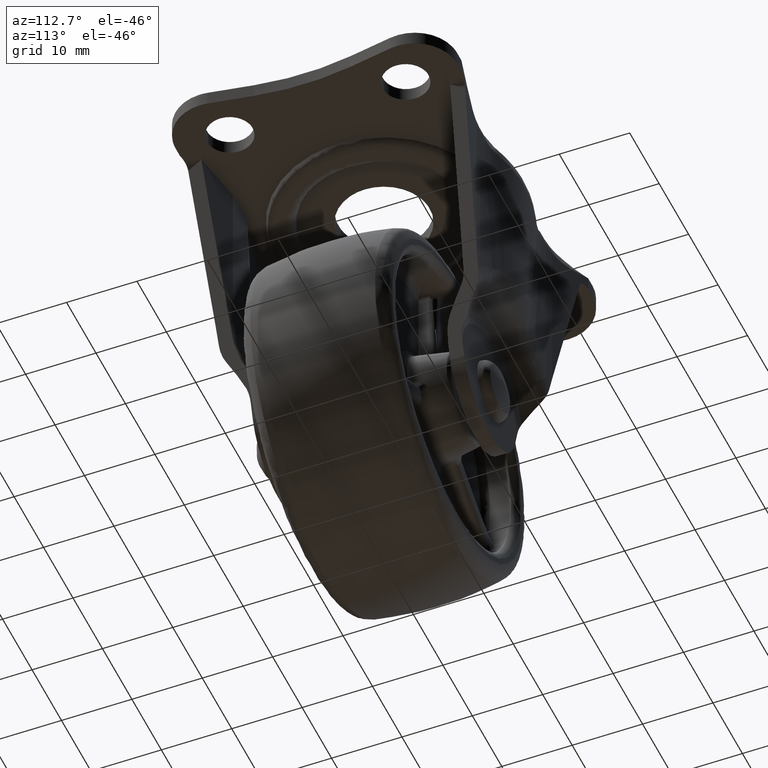
[diagram: clean part render]
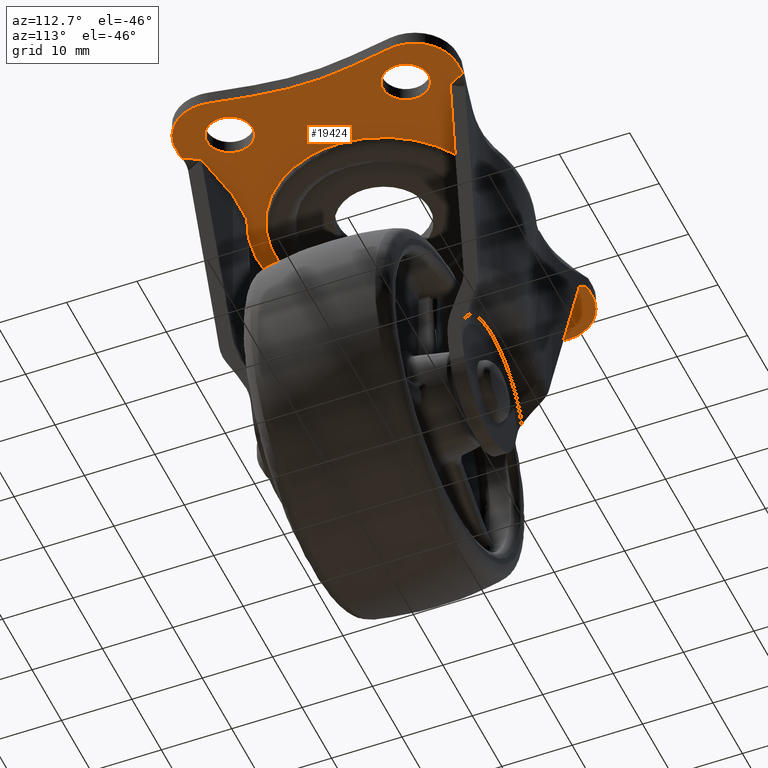
[diagram: same view with one face highlighted and labeled with its STEP entity id]
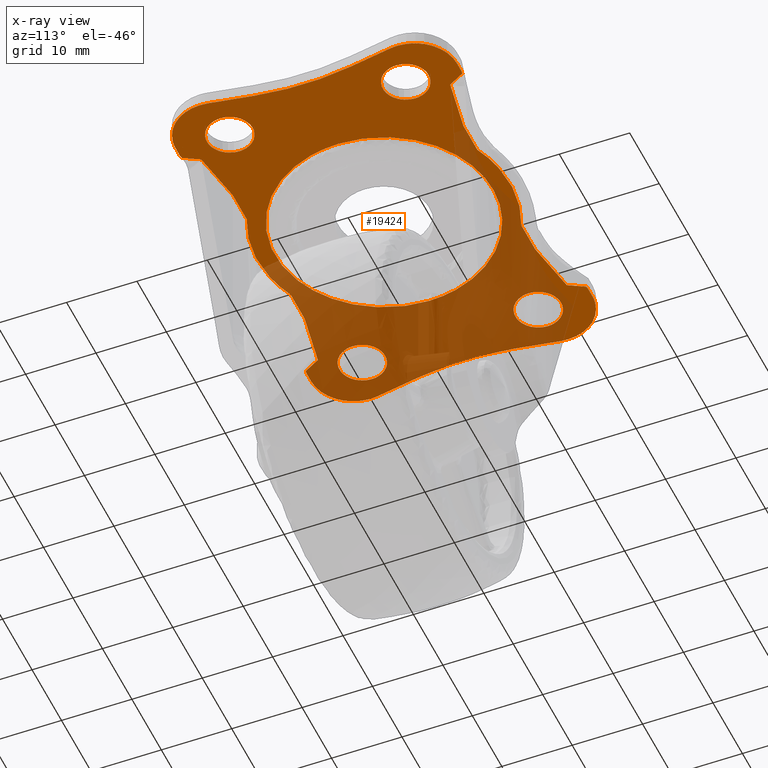
[diagram: x-ray of the same camera — body ghosted, the highlighted face saturated]
A machine part, auxiliary view. The second image highlights one B-rep face of the part: STEP entity #19424.
The next image is the same camera in x-ray: the body ghosted, the highlighted face saturated — about 48% of this face is hidden behind the body in this view.
In plain terms, the highlighted face is a freeform B-spline surface patch.
Its self-contained STEP definition (entity closure, byte-faithful):
#11125=CARTESIAN_POINT('',(-22.883611262647332,9.272719039319615,38.0));
#11126=VERTEX_POINT('',#11125);
#11127=CARTESIAN_POINT('',(-19.250000000000000,12.500000000000000,38.0));
#11128=VERTEX_POINT('',#11127);
#11129=CARTESIAN_POINT('',(-22.883611262647321,9.272719039319615,38.0));
#11130=CARTESIAN_POINT('',(-22.692478388881707,9.250000000000002,37.999999999999993));
#11131=CARTESIAN_POINT('',(-22.500000000000000,9.250000000000002,38.0));
#11132=CARTESIAN_POINT('',(-19.250000000000000,9.250000000000002,37.999999999999993));
#11133=CARTESIAN_POINT('',(-19.250000000000000,12.500000000000000,38.0));
#11141=(BOUNDED_CURVE()B_SPLINE_CURVE(2,(#11129,#11130,#11131,#11132,#11133),.UNSPECIFIED.,.F.,.U.)B_SPLINE_CURVE_WITH_KNOTS((3,2,3),(0.229562473514297,0.250000000000000,0.500000000000000),.UNSPECIFIED.)CURVE()GEOMETRIC_REPRESENTATION_ITEM()RATIONAL_B_SPLINE_CURVE((0.956026754185245,0.976055948332069,1.0,0.707106781186547,1.0))REPRESENTATION_ITEM(''));
#11142=EDGE_CURVE('',#11126,#11128,#11141,.T.);
#11183=CARTESIAN_POINT('',(-22.301592246396790,15.743938094864040,38.0));
#11184=VERTEX_POINT('',#11183);
#11190=CARTESIAN_POINT('',(-19.250000000000000,12.500000000000000,38.0));
#11191=CARTESIAN_POINT('',(-19.250000000000000,15.557294717226499,38.000000000000007));
#11192=CARTESIAN_POINT('',(-22.301592246396794,15.743938094864042,38.000000000000007));
#11200=(BOUNDED_CURVE()B_SPLINE_CURVE(2,(#11190,#11191,#11192),.UNSPECIFIED.,.F.,.U.)B_SPLINE_CURVE_WITH_KNOTS((3,3),(0.500000000000000,0.739332962229744),.UNSPECIFIED.)CURVE()GEOMETRIC_REPRESENTATION_ITEM()RATIONAL_B_SPLINE_CURVE((1.0,0.719603993297488,0.976072041647002))REPRESENTATION_ITEM(''));
#11201=EDGE_CURVE('',#11128,#11184,#11200,.T.);
#11224=CARTESIAN_POINT('',(-25.750000000000000,12.500000000000000,38.0));
#11225=VERTEX_POINT('',#11224);
#11226=CARTESIAN_POINT('',(-25.750000000000000,12.500000000000000,38.0));
#11227=CARTESIAN_POINT('',(-25.749999999999996,9.613432790681230,38.000000000000007));
#11228=CARTESIAN_POINT('',(-22.883611262647332,9.272719039319615,37.999999999999993));
#11236=(BOUNDED_CURVE()B_SPLINE_CURVE(2,(#11226,#11227,#11228),.UNSPECIFIED.,.F.,.U.)B_SPLINE_CURVE_WITH_KNOTS((3,3),(0.0,0.229562473514297),.UNSPECIFIED.)CURVE()GEOMETRIC_REPRESENTATION_ITEM()RATIONAL_B_SPLINE_CURVE((1.0,0.731050832854479,0.956026754185245))REPRESENTATION_ITEM(''));
#11237=EDGE_CURVE('',#11225,#11126,#11236,.T.);
#11239=CARTESIAN_POINT('',(-22.301592246396797,15.743938094864037,38.0));
#11240=CARTESIAN_POINT('',(-22.400703519164349,15.750000000000000,38.000000000000007));
#11241=CARTESIAN_POINT('',(-22.500000000000000,15.750000000000000,38.0));
#11242=CARTESIAN_POINT('',(-25.750000000000004,15.749999999999995,37.999999999999993));
#11243=CARTESIAN_POINT('',(-25.750000000000000,12.500000000000000,38.0));
#11251=(BOUNDED_CURVE()B_SPLINE_CURVE(2,(#11239,#11240,#11241,#11242,#11243),.UNSPECIFIED.,.F.,.U.)B_SPLINE_CURVE_WITH_KNOTS((3,2,3),(0.739332962229743,0.750000000000000,1.0),.UNSPECIFIED.)CURVE()GEOMETRIC_REPRESENTATION_ITEM()RATIONAL_B_SPLINE_CURVE((0.976072041647001,0.987502787889059,1.0,0.707106781186547,1.0))REPRESENTATION_ITEM(''));
#11252=EDGE_CURVE('',#11184,#11225,#11251,.T.);
#11497=CARTESIAN_POINT('',(22.116388737352668,9.272719039319615,38.0));
#11498=VERTEX_POINT('',#11497);
#11499=CARTESIAN_POINT('',(25.750000000000000,12.500000000000000,38.0));
#11500=VERTEX_POINT('',#11499);
#11501=CARTESIAN_POINT('',(22.116388737352672,9.272719039319615,37.999999999999993));
#11502=CARTESIAN_POINT('',(22.307521611118297,9.250000000000002,37.999999999999986));
#11503=CARTESIAN_POINT('',(22.500000000000000,9.250000000000002,38.0));
#11504=CARTESIAN_POINT('',(25.750000000000004,9.250000000000002,37.999999999999993));
#11505=CARTESIAN_POINT('',(25.750000000000000,12.500000000000000,38.0));
#11513=(BOUNDED_CURVE()B_SPLINE_CURVE(2,(#11501,#11502,#11503,#11504,#11505),.UNSPECIFIED.,.F.,.U.)B_SPLINE_CURVE_WITH_KNOTS((3,2,3),(0.229562473514297,0.250000000000000,0.500000000000000),.UNSPECIFIED.)CURVE()GEOMETRIC_REPRESENTATION_ITEM()RATIONAL_B_SPLINE_CURVE((0.956026754185245,0.976055948332069,1.0,0.707106781186547,1.0))REPRESENTATION_ITEM(''));
#11514=EDGE_CURVE('',#11498,#11500,#11513,.T.);
#11555=CARTESIAN_POINT('',(22.698407753603210,15.743938094864040,38.0));
#11556=VERTEX_POINT('',#11555);
#11562=CARTESIAN_POINT('',(25.750000000000000,12.500000000000000,38.0));
#11563=CARTESIAN_POINT('',(25.750000000000000,15.557294717226499,38.000000000000007));
#11564=CARTESIAN_POINT('',(22.698407753603203,15.743938094864042,38.000000000000007));
#11572=(BOUNDED_CURVE()B_SPLINE_CURVE(2,(#11562,#11563,#11564),.UNSPECIFIED.,.F.,.U.)B_SPLINE_CURVE_WITH_KNOTS((3,3),(0.500000000000000,0.739332962229744),.UNSPECIFIED.)CURVE()GEOMETRIC_REPRESENTATION_ITEM()RATIONAL_B_SPLINE_CURVE((1.0,0.719603993297488,0.976072041647002))REPRESENTATION_ITEM(''));
#11573=EDGE_CURVE('',#11500,#11556,#11572,.T.);
#11596=CARTESIAN_POINT('',(19.250000000000000,12.500000000000000,38.0));
#11597=VERTEX_POINT('',#11596);
#11598=CARTESIAN_POINT('',(19.250000000000000,12.500000000000000,38.0));
#11599=CARTESIAN_POINT('',(19.249999999999996,9.613432790681230,38.000000000000007));
#11600=CARTESIAN_POINT('',(22.116388737352672,9.272719039319615,37.999999999999993));
#11608=(BOUNDED_CURVE()B_SPLINE_CURVE(2,(#11598,#11599,#11600),.UNSPECIFIED.,.F.,.U.)B_SPLINE_CURVE_WITH_KNOTS((3,3),(0.0,0.229562473514297),.UNSPECIFIED.)CURVE()GEOMETRIC_REPRESENTATION_ITEM()RATIONAL_B_SPLINE_CURVE((1.0,0.731050832854479,0.956026754185245))REPRESENTATION_ITEM(''));
#11609=EDGE_CURVE('',#11597,#11498,#11608,.T.);
#11611=CARTESIAN_POINT('',(22.698407753603210,15.743938094864045,38.0));
#11612=CARTESIAN_POINT('',(22.599296480835651,15.749999999999998,38.0));
#11613=CARTESIAN_POINT('',(22.500000000000000,15.750000000000000,38.0));
#11614=CARTESIAN_POINT('',(19.250000000000000,15.749999999999995,37.999999999999993));
#11615=CARTESIAN_POINT('',(19.250000000000000,12.500000000000000,38.0));
#11623=(BOUNDED_CURVE()B_SPLINE_CURVE(2,(#11611,#11612,#11613,#11614,#11615),.UNSPECIFIED.,.F.,.U.)B_SPLINE_CURVE_WITH_KNOTS((3,2,3),(0.739332962229743,0.750000000000000,1.0),.UNSPECIFIED.)CURVE()GEOMETRIC_REPRESENTATION_ITEM()RATIONAL_B_SPLINE_CURVE((0.976072041647001,0.987502787889059,1.0,0.707106781186547,1.0))REPRESENTATION_ITEM(''));
#11624=EDGE_CURVE('',#11556,#11597,#11623,.T.);
#11683=CARTESIAN_POINT('',(22.116388737352668,-15.727280960680391,38.0));
#11684=VERTEX_POINT('',#11683);
#11685=CARTESIAN_POINT('',(25.750000000000000,-12.500000000000000,38.0));
#11686=VERTEX_POINT('',#11685);
#11687=CARTESIAN_POINT('',(22.116388737352676,-15.727280960680389,38.0));
#11688=CARTESIAN_POINT('',(22.307521611118286,-15.749999999999996,37.999999999999993));
#11689=CARTESIAN_POINT('',(22.500000000000000,-15.750000000000000,38.0));
#11690=CARTESIAN_POINT('',(25.750000000000004,-15.749999999999995,37.999999999999993));
#11691=CARTESIAN_POINT('',(25.750000000000000,-12.500000000000000,38.0));
#11699=(BOUNDED_CURVE()B_SPLINE_CURVE(2,(#11687,#11688,#11689,#11690,#11691),.UNSPECIFIED.,.F.,.U.)B_SPLINE_CURVE_WITH_KNOTS((3,2,3),(0.229562473514297,0.250000000000000,0.500000000000000),.UNSPECIFIED.)CURVE()GEOMETRIC_REPRESENTATION_ITEM()RATIONAL_B_SPLINE_CURVE((0.956026754185245,0.976055948332069,1.0,0.707106781186547,1.0))REPRESENTATION_ITEM(''));
#11700=EDGE_CURVE('',#11684,#11686,#11699,.T.);
#11741=CARTESIAN_POINT('',(22.698407753603210,-9.256061905135962,38.0));
#11742=VERTEX_POINT('',#11741);
#11748=CARTESIAN_POINT('',(25.750000000000000,-12.500000000000000,38.0));
#11749=CARTESIAN_POINT('',(25.750000000000000,-9.442705282773504,38.000000000000007));
#11750=CARTESIAN_POINT('',(22.698407753603203,-9.256061905135962,38.000000000000007));
#11758=(BOUNDED_CURVE()B_SPLINE_CURVE(2,(#11748,#11749,#11750),.UNSPECIFIED.,.F.,.U.)B_SPLINE_CURVE_WITH_KNOTS((3,3),(0.500000000000000,0.739332962229744),.UNSPECIFIED.)CURVE()GEOMETRIC_REPRESENTATION_ITEM()RATIONAL_B_SPLINE_CURVE((1.0,0.719603993297488,0.976072041647002))REPRESENTATION_ITEM(''));
#11759=EDGE_CURVE('',#11686,#11742,#11758,.T.);
#11782=CARTESIAN_POINT('',(19.250000000000000,-12.500000000000000,38.0));
#11783=VERTEX_POINT('',#11782);
#11784=CARTESIAN_POINT('',(19.250000000000000,-12.500000000000000,38.0));
#11785=CARTESIAN_POINT('',(19.249999999999996,-15.386567209318773,38.000000000000007));
#11786=CARTESIAN_POINT('',(22.116388737352672,-15.727280960680387,37.999999999999993));
#11794=(BOUNDED_CURVE()B_SPLINE_CURVE(2,(#11784,#11785,#11786),.UNSPECIFIED.,.F.,.U.)B_SPLINE_CURVE_WITH_KNOTS((3,3),(0.0,0.229562473514297),.UNSPECIFIED.)CURVE()GEOMETRIC_REPRESENTATION_ITEM()RATIONAL_B_SPLINE_CURVE((1.0,0.731050832854479,0.956026754185245))REPRESENTATION_ITEM(''));
#11795=EDGE_CURVE('',#11783,#11684,#11794,.T.);
#11797=CARTESIAN_POINT('',(22.698407753603206,-9.256061905135962,38.0));
#11798=CARTESIAN_POINT('',(22.599296480835655,-9.250000000000002,38.000000000000007));
#11799=CARTESIAN_POINT('',(22.500000000000000,-9.250000000000002,38.0));
#11800=CARTESIAN_POINT('',(19.250000000000000,-9.250000000000002,37.999999999999993));
#11801=CARTESIAN_POINT('',(19.250000000000000,-12.500000000000000,38.0));
#11809=(BOUNDED_CURVE()B_SPLINE_CURVE(2,(#11797,#11798,#11799,#11800,#11801),.UNSPECIFIED.,.F.,.U.)B_SPLINE_CURVE_WITH_KNOTS((3,2,3),(0.739332962229743,0.750000000000000,1.0),.UNSPECIFIED.)CURVE()GEOMETRIC_REPRESENTATION_ITEM()RATIONAL_B_SPLINE_CURVE((0.976072041647001,0.987502787889059,1.0,0.707106781186547,1.0))REPRESENTATION_ITEM(''));
#11810=EDGE_CURVE('',#11742,#11783,#11809,.T.);
#11869=CARTESIAN_POINT('',(-22.883611262647332,-15.727280960680391,38.0));
#11870=VERTEX_POINT('',#11869);
#11871=CARTESIAN_POINT('',(-19.250000000000000,-12.500000000000000,38.0));
#11872=VERTEX_POINT('',#11871);
#11873=CARTESIAN_POINT('',(-22.883611262647335,-15.727280960680389,38.0));
#11874=CARTESIAN_POINT('',(-22.692478388881717,-15.749999999999996,37.999999999999993));
#11875=CARTESIAN_POINT('',(-22.500000000000000,-15.750000000000000,38.0));
#11876=CARTESIAN_POINT('',(-19.250000000000000,-15.749999999999995,37.999999999999993));
#11877=CARTESIAN_POINT('',(-19.250000000000000,-12.500000000000000,38.0));
#11885=(BOUNDED_CURVE()B_SPLINE_CURVE(2,(#11873,#11874,#11875,#11876,#11877),.UNSPECIFIED.,.F.,.U.)B_SPLINE_CURVE_WITH_KNOTS((3,2,3),(0.229562473514297,0.250000000000000,0.500000000000000),.UNSPECIFIED.)CURVE()GEOMETRIC_REPRESENTATION_ITEM()RATIONAL_B_SPLINE_CURVE((0.956026754185245,0.976055948332069,1.0,0.707106781186547,1.0))REPRESENTATION_ITEM(''));
#11886=EDGE_CURVE('',#11870,#11872,#11885,.T.);
#11927=CARTESIAN_POINT('',(-22.301592246396790,-9.256061905135962,38.0));
#11928=VERTEX_POINT('',#11927);
#11934=CARTESIAN_POINT('',(-19.250000000000000,-12.500000000000000,38.0));
#11935=CARTESIAN_POINT('',(-19.250000000000000,-9.442705282773504,38.000000000000007));
#11936=CARTESIAN_POINT('',(-22.301592246396794,-9.256061905135962,38.000000000000007));
#11944=(BOUNDED_CURVE()B_SPLINE_CURVE(2,(#11934,#11935,#11936),.UNSPECIFIED.,.F.,.U.)B_SPLINE_CURVE_WITH_KNOTS((3,3),(0.500000000000000,0.739332962229744),.UNSPECIFIED.)CURVE()GEOMETRIC_REPRESENTATION_ITEM()RATIONAL_B_SPLINE_CURVE((1.0,0.719603993297488,0.976072041647002))REPRESENTATION_ITEM(''));
#11945=EDGE_CURVE('',#11872,#11928,#11944,.T.);
#11968=CARTESIAN_POINT('',(-25.750000000000000,-12.500000000000000,38.0));
#11969=VERTEX_POINT('',#11968);
#11970=CARTESIAN_POINT('',(-25.750000000000000,-12.500000000000000,38.0));
#11971=CARTESIAN_POINT('',(-25.749999999999996,-15.386567209318773,38.000000000000007));
#11972=CARTESIAN_POINT('',(-22.883611262647332,-15.727280960680387,37.999999999999993));
#11980=(BOUNDED_CURVE()B_SPLINE_CURVE(2,(#11970,#11971,#11972),.UNSPECIFIED.,.F.,.U.)B_SPLINE_CURVE_WITH_KNOTS((3,3),(0.0,0.229562473514297),.UNSPECIFIED.)CURVE()GEOMETRIC_REPRESENTATION_ITEM()RATIONAL_B_SPLINE_CURVE((1.0,0.731050832854479,0.956026754185245))REPRESENTATION_ITEM(''));
#11981=EDGE_CURVE('',#11969,#11870,#11980,.T.);
#11983=CARTESIAN_POINT('',(-22.301592246396797,-9.256061905135962,38.0));
#11984=CARTESIAN_POINT('',(-22.400703519164349,-9.250000000000002,38.000000000000007));
#11985=CARTESIAN_POINT('',(-22.500000000000000,-9.250000000000002,38.0));
#11986=CARTESIAN_POINT('',(-25.750000000000004,-9.250000000000002,37.999999999999993));
#11987=CARTESIAN_POINT('',(-25.750000000000000,-12.500000000000000,38.0));
#11995=(BOUNDED_CURVE()B_SPLINE_CURVE(2,(#11983,#11984,#11985,#11986,#11987),.UNSPECIFIED.,.F.,.U.)B_SPLINE_CURVE_WITH_KNOTS((3,2,3),(0.739332962229743,0.750000000000000,1.0),.UNSPECIFIED.)CURVE()GEOMETRIC_REPRESENTATION_ITEM()RATIONAL_B_SPLINE_CURVE((0.976072041647001,0.987502787889059,1.0,0.707106781186547,1.0))REPRESENTATION_ITEM(''));
#11996=EDGE_CURVE('',#11928,#11969,#11995,.T.);
#12532=CARTESIAN_POINT('',(-15.500000000000000,4.329470E-016,37.999999999382133));
#12533=VERTEX_POINT('',#12532);
#12547=CARTESIAN_POINT('',(15.500000000000000,0.0,38.0));
#12548=VERTEX_POINT('',#12547);
#12549=CARTESIAN_POINT('',(15.500000000000000,0.0,38.0));
#12550=CARTESIAN_POINT('',(15.500000000000004,15.500000000000004,38.0));
#12551=CARTESIAN_POINT('',(0.0,15.500000000000000,38.0));
#12552=CARTESIAN_POINT('',(-15.500000000000004,15.500000000000004,38.0));
#12553=CARTESIAN_POINT('',(-15.500000000000000,4.329470E-016,37.999999999382133));
#12561=(BOUNDED_CURVE()B_SPLINE_CURVE(2,(#12549,#12550,#12551,#12552,#12553),.UNSPECIFIED.,.F.,.U.)B_SPLINE_CURVE_WITH_KNOTS((3,2,3),(0.0,0.250000000000000,0.500000000000000),.UNSPECIFIED.)CURVE()GEOMETRIC_REPRESENTATION_ITEM()RATIONAL_B_SPLINE_CURVE((1.0,0.707106781186548,1.0,0.707106781186548,1.0))REPRESENTATION_ITEM(''));
#12562=EDGE_CURVE('',#12548,#12533,#12561,.T.);
#12564=CARTESIAN_POINT('',(-5.476180483232705,-14.500394729629299,37.999999998779003));
#12565=VERTEX_POINT('',#12564);
#12566=CARTESIAN_POINT('',(-5.476180483232706,-14.500394729629301,37.999999998778996));
#12567=CARTESIAN_POINT('',(-2.829322689087660,-15.500000000000000,38.000000000000007));
#12568=CARTESIAN_POINT('',(0.0,-15.500000000000000,38.0));
#12569=CARTESIAN_POINT('',(15.500000000000004,-15.500000000000004,38.0));
#12570=CARTESIAN_POINT('',(15.500000000000000,0.0,38.0));
#12578=(BOUNDED_CURVE()B_SPLINE_CURVE(2,(#12566,#12567,#12568,#12569,#12570),.UNSPECIFIED.,.F.,.U.)B_SPLINE_CURVE_WITH_KNOTS((3,2,3),(0.689999999999975,0.750000000000000,1.0),.UNSPECIFIED.)CURVE()GEOMETRIC_REPRESENTATION_ITEM()RATIONAL_B_SPLINE_CURVE((0.893152553776822,0.929705627484742,1.0,0.707106781186548,1.0))REPRESENTATION_ITEM(''));
#12579=EDGE_CURVE('',#12565,#12548,#12578,.T.);
#12628=CARTESIAN_POINT('',(-15.500000000000000,4.329470E-016,37.999999999382133));
#12629=CARTESIAN_POINT('',(-15.500000000000000,-10.714825727633944,38.0));
#12630=CARTESIAN_POINT('',(-5.476180483232705,-14.500394729629296,37.999999998779003));
#12638=(BOUNDED_CURVE()B_SPLINE_CURVE(2,(#12628,#12629,#12630),.UNSPECIFIED.,.F.,.U.)B_SPLINE_CURVE_WITH_KNOTS((3,3),(0.500000000000000,0.689999999999975),.UNSPECIFIED.)CURVE()GEOMETRIC_REPRESENTATION_ITEM()RATIONAL_B_SPLINE_CURVE((1.0,0.777401153701806,0.893152553776822))REPRESENTATION_ITEM(''));
#12639=EDGE_CURVE('',#12533,#12565,#12638,.T.);
#13629=CARTESIAN_POINT('',(27.835605114469150,-6.819492342354530,38.0));
#13630=VERTEX_POINT('',#13629);
#13631=CARTESIAN_POINT('',(27.838640466785701,-6.836943648978890,38.0));
#13632=VERTEX_POINT('',#13631);
#13633=CARTESIAN_POINT('',(27.835605114469161,-6.819492342354526,38.0));
#13634=CARTESIAN_POINT('',(27.837115062612810,-6.828219339820392,38.000000000000007));
#13635=CARTESIAN_POINT('',(27.838640466785730,-6.836943648978882,38.0));
#13643=(BOUNDED_CURVE()B_SPLINE_CURVE(2,(#13633,#13634,#13635),.UNSPECIFIED.,.F.,.U.)CURVE()GEOMETRIC_REPRESENTATION_ITEM()QUASI_UNIFORM_CURVE()RATIONAL_B_SPLINE_CURVE((1.0,0.999999607798090,1.0))REPRESENTATION_ITEM(''));
#13644=EDGE_CURVE('',#13630,#13632,#13643,.T.);
#13690=CARTESIAN_POINT('',(27.838640466785701,6.836943648978890,38.0));
#13691=VERTEX_POINT('',#13690);
#13692=CARTESIAN_POINT('',(27.835605114469150,6.819492342354530,38.0));
#13693=VERTEX_POINT('',#13692);
#13694=CARTESIAN_POINT('',(27.838640466785730,6.836943648978881,38.0));
#13695=CARTESIAN_POINT('',(27.837115062612892,6.828219339820903,38.000000000000007));
#13696=CARTESIAN_POINT('',(27.835605114469161,6.819492342354530,38.0));
#13704=(BOUNDED_CURVE()B_SPLINE_CURVE(2,(#13694,#13695,#13696),.UNSPECIFIED.,.F.,.U.)CURVE()GEOMETRIC_REPRESENTATION_ITEM()QUASI_UNIFORM_CURVE()RATIONAL_B_SPLINE_CURVE((1.0,0.999999607798090,1.0))REPRESENTATION_ITEM(''));
#13705=EDGE_CURVE('',#13691,#13693,#13704,.T.);
#13751=CARTESIAN_POINT('',(-27.835605114468049,6.819492342349180,38.0));
#13752=VERTEX_POINT('',#13751);
#13753=CARTESIAN_POINT('',(-27.838640466784849,6.836943648974891,38.0));
#13754=VERTEX_POINT('',#13753);
#13755=CARTESIAN_POINT('',(-27.835605114468031,6.819492342349182,38.0));
#13756=CARTESIAN_POINT('',(-27.837115062611797,6.828219339815714,38.0));
#13757=CARTESIAN_POINT('',(-27.838640466784842,6.836943648974891,38.0));
#13765=(BOUNDED_CURVE()B_SPLINE_CURVE(2,(#13755,#13756,#13757),.UNSPECIFIED.,.F.,.U.)CURVE()GEOMETRIC_REPRESENTATION_ITEM()QUASI_UNIFORM_CURVE()RATIONAL_B_SPLINE_CURVE((1.0,0.999999607798090,1.0))REPRESENTATION_ITEM(''));
#13766=EDGE_CURVE('',#13752,#13754,#13765,.T.);
#13812=CARTESIAN_POINT('',(-27.838640466785549,-6.836943648978880,38.0));
#13813=VERTEX_POINT('',#13812);
#13814=CARTESIAN_POINT('',(-27.835605114468951,-6.819492342354520,38.0));
#13815=VERTEX_POINT('',#13814);
#13816=CARTESIAN_POINT('',(-27.838640466785531,-6.836943648978885,38.0));
#13817=CARTESIAN_POINT('',(-27.837115062612749,-6.828219339821226,37.999999999999993));
#13818=CARTESIAN_POINT('',(-27.835605114468962,-6.819492342354519,38.0));
#13826=(BOUNDED_CURVE()B_SPLINE_CURVE(2,(#13816,#13817,#13818),.UNSPECIFIED.,.F.,.U.)CURVE()GEOMETRIC_REPRESENTATION_ITEM()QUASI_UNIFORM_CURVE()RATIONAL_B_SPLINE_CURVE((1.0,0.999999607798090,1.0))REPRESENTATION_ITEM(''));
#13827=EDGE_CURVE('',#13813,#13815,#13826,.T.);
#15093=CARTESIAN_POINT('',(19.800149920042600,-17.681367679093199,38.0));
#15094=VERTEX_POINT('',#15093);
#15102=CARTESIAN_POINT('',(20.427527490583842,-18.802745677493299,38.000000000000007));
#15103=VERTEX_POINT('',#15102);
#15104=CARTESIAN_POINT('',(20.427527490583842,-18.802745677493292,38.0));
#15105=CARTESIAN_POINT('',(20.218401633736761,-18.428953011359951,38.0));
#15106=CARTESIAN_POINT('',(20.009275776889680,-18.055160345226600,38.0));
#15107=CARTESIAN_POINT('',(19.800149920042600,-17.681367679093249,38.0));
#15108=B_SPLINE_CURVE_WITH_KNOTS('',3,(#15104,#15105,#15106,#15107),.UNSPECIFIED.,.F.,.U.,(4,4),(0.168196648634583,0.336393297269167),.UNSPECIFIED.);
#15109=EDGE_CURVE('',#15103,#15094,#15108,.T.);
#15111=CARTESIAN_POINT('',(21.054905061125101,-19.924123675893298,38.0));
#15112=VERTEX_POINT('',#15111);
#15113=CARTESIAN_POINT('',(21.054905061125080,-19.924123675893309,38.0));
#15114=CARTESIAN_POINT('',(21.015014309796221,-19.852822735311008,38.0));
#15115=CARTESIAN_POINT('',(20.975123558467359,-19.781521794728700,38.0));
#15116=CARTESIAN_POINT('',(20.935232807138501,-19.710220854146399,38.0));
#15117=CARTESIAN_POINT('',(20.765997701620279,-19.407729128595381,38.0));
#15118=CARTESIAN_POINT('',(20.596762596102060,-19.105237403044342,38.0));
#15119=CARTESIAN_POINT('',(20.427527490583842,-18.802745677493292,38.0));
#15120=B_SPLINE_CURVE_WITH_KNOTS('',3,(#15113,#15114,#15115,#15116,#15117,#15118,#15119),.UNSPECIFIED.,.F.,.U.,(4,3,4),(0.0,0.032083506010144,0.168196648634583),.UNSPECIFIED.);
#15121=EDGE_CURVE('',#15112,#15103,#15120,.T.);
#15180=CARTESIAN_POINT('',(21.054905061124899,19.924123675893298,38.0));
#15181=VERTEX_POINT('',#15180);
#15209=CARTESIAN_POINT('',(20.427527490583760,18.802745677493249,37.999999999999993));
#15210=VERTEX_POINT('',#15209);
#15211=CARTESIAN_POINT('',(20.427527490583760,18.802745677493249,38.0));
#15212=CARTESIAN_POINT('',(20.596762596102010,19.105237403044381,38.0));
#15213=CARTESIAN_POINT('',(20.765997701620250,19.407729128595509,38.0));
#15214=CARTESIAN_POINT('',(20.935232807138501,19.710220854146652,38.0));
#15215=CARTESIAN_POINT('',(20.975123558467310,19.781521794728860,38.0));
#15216=CARTESIAN_POINT('',(21.015014309796111,19.852822735311069,38.0));
#15217=CARTESIAN_POINT('',(21.054905061124909,19.924123675893281,38.0));
#15218=B_SPLINE_CURVE_WITH_KNOTS('',3,(#15211,#15212,#15213,#15214,#15215,#15216,#15217),.UNSPECIFIED.,.F.,.U.,(4,3,4),(0.831803351365418,0.967916493989898,1.0),.UNSPECIFIED.);
#15219=EDGE_CURVE('',#15210,#15181,#15218,.T.);
#15221=CARTESIAN_POINT('',(19.800149920042600,17.681367679093199,38.0));
#15222=VERTEX_POINT('',#15221);
#15223=CARTESIAN_POINT('',(19.800149920042600,17.681367679093249,38.0));
#15224=CARTESIAN_POINT('',(20.009275776889648,18.055160345226579,38.0));
#15225=CARTESIAN_POINT('',(20.218401633736701,18.428953011359908,38.0));
#15226=CARTESIAN_POINT('',(20.427527490583760,18.802745677493249,38.0));
#15227=B_SPLINE_CURVE_WITH_KNOTS('',3,(#15223,#15224,#15225,#15226),.UNSPECIFIED.,.F.,.U.,(4,4),(0.663606702730837,0.831803351365418),.UNSPECIFIED.);
#15228=EDGE_CURVE('',#15222,#15210,#15227,.T.);
#15278=CARTESIAN_POINT('',(-20.427531497495330,-18.802745767713969,38.000000000000007));
#15279=VERTEX_POINT('',#15278);
#15280=CARTESIAN_POINT('',(-21.054909055369698,-19.924123706860151,38.0));
#15281=VERTEX_POINT('',#15280);
#15282=CARTESIAN_POINT('',(-20.427531497495330,-18.802745767713962,38.0));
#15283=CARTESIAN_POINT('',(-20.596766615090338,-19.105237504974760,38.0));
#15284=CARTESIAN_POINT('',(-20.766001732685339,-19.407729242235561,38.0));
#15285=CARTESIAN_POINT('',(-20.935236850280351,-19.710220979496349,38.0));
#15286=CARTESIAN_POINT('',(-20.975127585310130,-19.781521888617618,38.0));
#15287=CARTESIAN_POINT('',(-21.015018320339909,-19.852822797738881,38.0));
#15288=CARTESIAN_POINT('',(-21.054909055369681,-19.924123706860140,38.0));
#15289=B_SPLINE_CURVE_WITH_KNOTS('',3,(#15282,#15283,#15284,#15285,#15286,#15287,#15288),.UNSPECIFIED.,.F.,.U.,(4,3,4),(0.168196647435184,0.304309801550334,0.336393294870369),.UNSPECIFIED.);
#15290=EDGE_CURVE('',#15279,#15281,#15289,.T.);
#15292=CARTESIAN_POINT('',(-19.800153939620898,-17.681367828567751,38.0));
#15293=VERTEX_POINT('',#15292);
#15294=CARTESIAN_POINT('',(-19.800153939620898,-17.681367828567751,38.0));
#15295=CARTESIAN_POINT('',(-20.009279792245788,-18.055160474949830,38.0));
#15296=CARTESIAN_POINT('',(-20.218405644870561,-18.428953121331901,38.0));
#15297=CARTESIAN_POINT('',(-20.427531497495330,-18.802745767713962,38.0));
#15298=B_SPLINE_CURVE_WITH_KNOTS('',3,(#15294,#15295,#15296,#15297),.UNSPECIFIED.,.F.,.U.,(4,4),(0.0,0.168196647435184),.UNSPECIFIED.);
#15299=EDGE_CURVE('',#15293,#15279,#15298,.T.);
#15378=CARTESIAN_POINT('',(-21.054906803645000,19.924096285058599,38.0));
#15379=VERTEX_POINT('',#15378);
#15414=CARTESIAN_POINT('',(-19.800153939621151,17.681345540898249,38.0));
#15415=VERTEX_POINT('',#15414);
#15423=CARTESIAN_POINT('',(-20.427530371632990,18.802720912978440,38.0));
#15424=VERTEX_POINT('',#15423);
#15425=CARTESIAN_POINT('',(-20.427530371632990,18.802720912978440,38.0));
#15426=CARTESIAN_POINT('',(-20.218404894295659,18.428929122285059,38.0));
#15427=CARTESIAN_POINT('',(-20.009279416958339,18.055137331591670,38.0));
#15428=CARTESIAN_POINT('',(-19.800153939621151,17.681345540898249,38.0));
#15429=B_SPLINE_CURVE_WITH_KNOTS('',3,(#15425,#15426,#15427,#15428),.UNSPECIFIED.,.F.,.U.,(4,4),(0.831803405126846,1.0),.UNSPECIFIED.);
#15430=EDGE_CURVE('',#15424,#15415,#15429,.T.);
#15432=CARTESIAN_POINT('',(-21.054906803644990,19.924096285058621,38.0));
#15433=CARTESIAN_POINT('',(-21.015016819190109,19.852796752787530,38.0));
#15434=CARTESIAN_POINT('',(-20.975126834735232,19.781497220516439,38.0));
#15435=CARTESIAN_POINT('',(-20.935236850280351,19.710197688245351,38.0));
#15436=CARTESIAN_POINT('',(-20.766001357397890,19.407705429823050,38.0));
#15437=CARTESIAN_POINT('',(-20.596765864515440,19.105213171400749,38.0));
#15438=CARTESIAN_POINT('',(-20.427530371632990,18.802720912978440,38.0));
#15439=B_SPLINE_CURVE_WITH_KNOTS('',3,(#15432,#15433,#15434,#15435,#15436,#15437,#15438),.UNSPECIFIED.,.F.,.U.,(4,3,4),(0.663606810253692,0.695689747446615,0.831803405126846),.UNSPECIFIED.);
#15440=EDGE_CURVE('',#15379,#15424,#15439,.T.);
#18730=CARTESIAN_POINT('',(-7.479596978386980,16.380500000000001,38.0));
#18731=VERTEX_POINT('',#18730);
#18746=CARTESIAN_POINT('',(7.479596978386971,16.380500000000001,38.0));
#18747=VERTEX_POINT('',#18746);
#18761=CARTESIAN_POINT('',(-7.479596978386980,16.380500000000001,38.0));
#18762=CARTESIAN_POINT('',(-1.942890E-013,19.781364234350786,37.999999999999993));
#18763=CARTESIAN_POINT('',(7.479596978386971,16.380500000000001,38.0));
#18771=(BOUNDED_CURVE()B_SPLINE_CURVE(2,(#18761,#18762,#18763),.UNSPECIFIED.,.F.,.U.)CURVE()GEOMETRIC_REPRESENTATION_ITEM()QUASI_UNIFORM_CURVE()RATIONAL_B_SPLINE_CURVE((1.0,0.910402383024011,1.0))REPRESENTATION_ITEM(''));
#18772=EDGE_CURVE('',#18731,#18747,#18771,.T.);
#18791=CARTESIAN_POINT('',(7.479596978386980,-16.380500000000001,38.0));
#18792=VERTEX_POINT('',#18791);
#18807=CARTESIAN_POINT('',(-7.479596978386980,-16.380500000000001,38.0));
#18808=VERTEX_POINT('',#18807);
#18822=CARTESIAN_POINT('',(7.479596978386980,-16.380500000000001,38.0));
#18823=CARTESIAN_POINT('',(1.942890E-013,-19.781364234350786,37.999999999999993));
#18824=CARTESIAN_POINT('',(-7.479596978386980,-16.380500000000001,38.0));
#18832=(BOUNDED_CURVE()B_SPLINE_CURVE(2,(#18822,#18823,#18824),.UNSPECIFIED.,.F.,.U.)CURVE()GEOMETRIC_REPRESENTATION_ITEM()QUASI_UNIFORM_CURVE()RATIONAL_B_SPLINE_CURVE((1.0,0.910402383024011,1.0))REPRESENTATION_ITEM(''));
#18833=EDGE_CURVE('',#18792,#18808,#18832,.T.);
#18849=CARTESIAN_POINT('',(12.169252885207740,-16.380500000000001,38.0));
#18850=VERTEX_POINT('',#18849);
#18856=CARTESIAN_POINT('',(12.169252885207740,-16.380500000000001,38.0));
#18857=CARTESIAN_POINT('',(19.800149920042600,-17.681367679093199,38.0));
#18858=QUASI_UNIFORM_CURVE('',1,(#18856,#18857),.UNSPECIFIED.,.F.,.U.);
#18859=EDGE_CURVE('',#18850,#15094,#18858,.T.);
#18869=CARTESIAN_POINT('',(-12.169252814956680,-16.380500000000001,38.0));
#18870=VERTEX_POINT('',#18869);
#18871=CARTESIAN_POINT('',(-19.800153939620898,-17.681367828567751,38.0));
#18872=CARTESIAN_POINT('',(-12.169252814956680,-16.380500000000001,38.0));
#18873=QUASI_UNIFORM_CURVE('',1,(#18871,#18872),.UNSPECIFIED.,.F.,.U.);
#18874=EDGE_CURVE('',#15293,#18870,#18873,.T.);
#18901=CARTESIAN_POINT('',(-12.169249892502300,16.380500000000001,38.0));
#18902=VERTEX_POINT('',#18901);
#18908=CARTESIAN_POINT('',(-12.169249892502300,16.380500000000001,38.0));
#18909=CARTESIAN_POINT('',(-19.800153939621151,17.681345540898249,38.0));
#18910=QUASI_UNIFORM_CURVE('',1,(#18908,#18909),.UNSPECIFIED.,.F.,.U.);
#18911=EDGE_CURVE('',#18902,#15415,#18910,.T.);
#18921=CARTESIAN_POINT('',(12.169252885207801,16.380500000000001,38.0));
#18922=VERTEX_POINT('',#18921);
#18923=CARTESIAN_POINT('',(19.800149920042600,17.681367679093199,38.0));
#18924=CARTESIAN_POINT('',(12.169252885207801,16.380500000000001,38.0));
#18925=QUASI_UNIFORM_CURVE('',1,(#18923,#18924),.UNSPECIFIED.,.F.,.U.);
#18926=EDGE_CURVE('',#15222,#18922,#18925,.T.);
#18951=CARTESIAN_POINT('',(-12.169252814956680,-16.380500000000001,38.0));
#18952=CARTESIAN_POINT('',(-7.479596978386980,-16.380500000000001,38.0));
#18953=QUASI_UNIFORM_CURVE('',1,(#18951,#18952),.UNSPECIFIED.,.F.,.U.);
#18954=EDGE_CURVE('',#18870,#18808,#18953,.T.);
#18968=CARTESIAN_POINT('',(7.479596978386980,-16.380500000000001,38.0));
#18969=CARTESIAN_POINT('',(12.169252885207740,-16.380500000000001,38.0));
#18970=QUASI_UNIFORM_CURVE('',1,(#18968,#18969),.UNSPECIFIED.,.F.,.U.);
#18971=EDGE_CURVE('',#18792,#18850,#18970,.T.);
#18985=CARTESIAN_POINT('',(12.169252885207801,16.380500000000001,38.0));
#18986=CARTESIAN_POINT('',(7.479596978386971,16.380500000000001,38.0));
#18987=QUASI_UNIFORM_CURVE('',1,(#18985,#18986),.UNSPECIFIED.,.F.,.U.);
#18988=EDGE_CURVE('',#18922,#18747,#18987,.T.);
#19002=CARTESIAN_POINT('',(-7.479596978386980,16.380500000000001,38.0));
#19003=CARTESIAN_POINT('',(-12.169249892502300,16.380500000000001,38.0));
#19004=QUASI_UNIFORM_CURVE('',1,(#19002,#19003),.UNSPECIFIED.,.F.,.U.);
#19005=EDGE_CURVE('',#18731,#18902,#19004,.T.);
#19196=CARTESIAN_POINT('',(-31.897141824239760,-21.997999922472239,38.0));
#19197=CARTESIAN_POINT('',(31.897143380328028,-21.997999922472239,38.0));
#19198=CARTESIAN_POINT('',(-31.897141824239760,21.998000995355849,38.0));
#19199=CARTESIAN_POINT('',(31.897143380328028,21.998000995355849,38.0));
#19200=B_SPLINE_SURFACE_WITH_KNOTS('',1,1,((#19196,#19198),(#19197,#19199)),.UNSPECIFIED.,.F.,.F.,.U.,(2,2),(2,2),(0.0,63.794285204567792),(0.0,43.996000917828077),.UNSPECIFIED.);
#19201=CARTESIAN_POINT('',(-21.500166403902849,20.0,38.0));
#19202=VERTEX_POINT('',#19201);
#19203=CARTESIAN_POINT('',(-21.500166403902849,20.0,38.0));
#19204=CARTESIAN_POINT('',(-21.054906803645000,19.924096285058599,38.0));
#19205=QUASI_UNIFORM_CURVE('',1,(#19203,#19204),.UNSPECIFIED.,.F.,.U.);
#19206=EDGE_CURVE('',#19202,#15379,#19205,.T.);
#19207=ORIENTED_EDGE('',*,*,#19206,.T.);
#19208=ORIENTED_EDGE('',*,*,#15440,.T.);
#19209=ORIENTED_EDGE('',*,*,#15430,.T.);
#19210=ORIENTED_EDGE('',*,*,#18911,.F.);
#19211=ORIENTED_EDGE('',*,*,#19005,.F.);
#19212=ORIENTED_EDGE('',*,*,#18772,.T.);
#19213=ORIENTED_EDGE('',*,*,#18988,.F.);
#19214=ORIENTED_EDGE('',*,*,#18926,.F.);
#19215=ORIENTED_EDGE('',*,*,#15228,.T.);
#19216=ORIENTED_EDGE('',*,*,#15219,.T.);
#19217=CARTESIAN_POINT('',(21.499996000000099,20.0,38.0));
#19218=VERTEX_POINT('',#19217);
#19219=CARTESIAN_POINT('',(21.054905061124899,19.924123675893298,38.0));
#19220=CARTESIAN_POINT('',(21.499996000000099,20.0,38.0));
#19221=QUASI_UNIFORM_CURVE('',1,(#19219,#19220),.UNSPECIFIED.,.F.,.U.);
#19222=EDGE_CURVE('',#15181,#19218,#19221,.T.);
#19223=ORIENTED_EDGE('',*,*,#19222,.T.);
#19224=CARTESIAN_POINT('',(23.000008567191049,20.0,38.0));
#19225=VERTEX_POINT('',#19224);
#19226=CARTESIAN_POINT('',(23.000008567191049,20.0,38.0));
#19227=CARTESIAN_POINT('',(21.499996000000099,20.0,38.0));
#19228=QUASI_UNIFORM_CURVE('',1,(#19226,#19227),.UNSPECIFIED.,.F.,.U.);
#19229=EDGE_CURVE('',#19225,#19218,#19228,.T.);
#19230=ORIENTED_EDGE('',*,*,#19229,.F.);
#19231=CARTESIAN_POINT('',(28.910381000000100,12.966594999999900,38.0));
#19232=VERTEX_POINT('',#19231);
#19233=CARTESIAN_POINT('',(23.000008567191049,20.0,38.0));
#19234=CARTESIAN_POINT('',(25.795241972177383,20.000011973698157,38.0));
#19235=CARTESIAN_POINT('',(27.593526419857760,17.860034676219090,38.0));
#19236=CARTESIAN_POINT('',(29.391810867538137,15.720057378740025,38.0));
#19237=CARTESIAN_POINT('',(28.910381000000068,12.966594999999909,38.0));
#19245=(BOUNDED_CURVE()B_SPLINE_CURVE(2,(#19233,#19234,#19235,#19236,#19237),.UNSPECIFIED.,.F.,.U.)B_SPLINE_CURVE_WITH_KNOTS((3,2,3),(0.0,0.500000000000000,1.0),.UNSPECIFIED.)CURVE()GEOMETRIC_REPRESENTATION_ITEM()RATIONAL_B_SPLINE_CURVE((1.0,0.906459143822030,1.0,0.906459143822030,1.0))REPRESENTATION_ITEM(''));
#19246=EDGE_CURVE('',#19225,#19232,#19245,.T.);
#19247=ORIENTED_EDGE('',*,*,#19246,.T.);
#19248=CARTESIAN_POINT('',(28.910381000000100,12.966594999999900,38.0));
#19249=CARTESIAN_POINT('',(27.838640466785701,6.836943648978890,38.0));
#19250=QUASI_UNIFORM_CURVE('',1,(#19248,#19249),.UNSPECIFIED.,.F.,.U.);
#19251=EDGE_CURVE('',#19232,#13691,#19250,.T.);
#19252=ORIENTED_EDGE('',*,*,#19251,.T.);
#19253=ORIENTED_EDGE('',*,*,#13705,.T.);
#19254=CARTESIAN_POINT('',(27.835605114469150,-6.819492342354530,38.0));
#19255=CARTESIAN_POINT('',(26.655694172223324,-6.413517E-015,38.000000000000007));
#19256=CARTESIAN_POINT('',(27.835605114469150,6.819492342354530,38.0));
#19264=(BOUNDED_CURVE()B_SPLINE_CURVE(2,(#19254,#19255,#19256),.UNSPECIFIED.,.F.,.U.)CURVE()GEOMETRIC_REPRESENTATION_ITEM()QUASI_UNIFORM_CURVE()RATIONAL_B_SPLINE_CURVE((1.0,0.985359872138274,1.0))REPRESENTATION_ITEM(''));
#19265=EDGE_CURVE('',#13630,#13693,#19264,.T.);
#19266=ORIENTED_EDGE('',*,*,#19265,.F.);
#19267=ORIENTED_EDGE('',*,*,#13644,.T.);
#19268=CARTESIAN_POINT('',(28.910381000000100,-12.966594999999900,38.0));
#19269=VERTEX_POINT('',#19268);
#19270=CARTESIAN_POINT('',(27.838640466785701,-6.836943648978890,38.0));
#19271=CARTESIAN_POINT('',(28.910381000000100,-12.966594999999900,38.0));
#19272=QUASI_UNIFORM_CURVE('',1,(#19270,#19271),.UNSPECIFIED.,.F.,.U.);
#19273=EDGE_CURVE('',#13632,#19269,#19272,.T.);
#19274=ORIENTED_EDGE('',*,*,#19273,.T.);
#19275=CARTESIAN_POINT('',(23.000008567191049,-20.0,38.0));
#19276=VERTEX_POINT('',#19275);
#19277=CARTESIAN_POINT('',(28.910381000000068,-12.966594999999909,38.0));
#19278=CARTESIAN_POINT('',(29.391810867538140,-15.720057378740027,38.000000000000007));
#19279=CARTESIAN_POINT('',(27.593526419857760,-17.860034676219090,38.0));
#19280=CARTESIAN_POINT('',(25.795241972177386,-20.000011973698147,38.000000000000007));
#19281=CARTESIAN_POINT('',(23.000008567191049,-20.0,38.0));
#19289=(BOUNDED_CURVE()B_SPLINE_CURVE(2,(#19277,#19278,#19279,#19280,#19281),.UNSPECIFIED.,.F.,.U.)B_SPLINE_CURVE_WITH_KNOTS((3,2,3),(0.0,0.500000000000000,1.0),.UNSPECIFIED.)CURVE()GEOMETRIC_REPRESENTATION_ITEM()RATIONAL_B_SPLINE_CURVE((1.0,0.906459143822029,1.0,0.906459143822029,1.0))REPRESENTATION_ITEM(''));
#19290=EDGE_CURVE('',#19269,#19276,#19289,.T.);
#19291=ORIENTED_EDGE('',*,*,#19290,.T.);
#19292=CARTESIAN_POINT('',(21.499996000000099,-20.0,38.0));
#19293=VERTEX_POINT('',#19292);
#19294=CARTESIAN_POINT('',(23.000008567191049,-20.0,38.0));
#19295=CARTESIAN_POINT('',(21.499996000000099,-20.0,38.0));
#19296=QUASI_UNIFORM_CURVE('',1,(#19294,#19295),.UNSPECIFIED.,.F.,.U.);
#19297=EDGE_CURVE('',#19276,#19293,#19296,.T.);
#19298=ORIENTED_EDGE('',*,*,#19297,.T.);
#19299=CARTESIAN_POINT('',(21.499996000000099,-20.0,38.0));
#19300=CARTESIAN_POINT('',(21.054905061125101,-19.924123675893298,38.0));
#19301=QUASI_UNIFORM_CURVE('',1,(#19299,#19300),.UNSPECIFIED.,.F.,.U.);
#19302=EDGE_CURVE('',#19293,#15112,#19301,.T.);
#19303=ORIENTED_EDGE('',*,*,#19302,.T.);
#19304=ORIENTED_EDGE('',*,*,#15121,.T.);
#19305=ORIENTED_EDGE('',*,*,#15109,.T.);
#19306=ORIENTED_EDGE('',*,*,#18859,.F.);
#19307=ORIENTED_EDGE('',*,*,#18971,.F.);
#19308=ORIENTED_EDGE('',*,*,#18833,.T.);
#19309=ORIENTED_EDGE('',*,*,#18954,.F.);
#19310=ORIENTED_EDGE('',*,*,#18874,.F.);
#19311=ORIENTED_EDGE('',*,*,#15299,.T.);
#19312=ORIENTED_EDGE('',*,*,#15290,.T.);
#19313=CARTESIAN_POINT('',(-21.500000000000000,-20.0,38.0));
#19314=VERTEX_POINT('',#19313);
#19315=CARTESIAN_POINT('',(-21.054909055369698,-19.924123706860151,38.0));
#19316=CARTESIAN_POINT('',(-21.500000000000000,-20.0,38.0));
#19317=QUASI_UNIFORM_CURVE('',1,(#19315,#19316),.UNSPECIFIED.,.F.,.U.);
#19318=EDGE_CURVE('',#15281,#19314,#19317,.T.);
#19319=ORIENTED_EDGE('',*,*,#19318,.T.);
#19320=CARTESIAN_POINT('',(-23.000005425598200,-19.999999999999250,38.0));
#19321=VERTEX_POINT('',#19320);
#19322=CARTESIAN_POINT('',(-21.500000000000000,-20.0,38.0));
#19323=CARTESIAN_POINT('',(-23.000005425598200,-19.999999999999250,38.0));
#19324=QUASI_UNIFORM_CURVE('',1,(#19322,#19323),.UNSPECIFIED.,.F.,.U.);
#19325=EDGE_CURVE('',#19314,#19321,#19324,.T.);
#19326=ORIENTED_EDGE('',*,*,#19325,.T.);
#19327=CARTESIAN_POINT('',(-28.910380999999902,-12.966594999999900,38.0));
#19328=VERTEX_POINT('',#19327);
#19329=CARTESIAN_POINT('',(-23.000005425598200,-19.999999999999250,38.0));
#19330=CARTESIAN_POINT('',(-25.795239786436039,-20.000013437267125,38.000000000000007));
#19331=CARTESIAN_POINT('',(-27.593525409301900,-17.860035878790629,38.0));
#19332=CARTESIAN_POINT('',(-29.391811032167773,-15.720058320314140,38.000000000000007));
#19333=CARTESIAN_POINT('',(-28.910380999999919,-12.966594999999900,38.0));
#19341=(BOUNDED_CURVE()B_SPLINE_CURVE(2,(#19329,#19330,#19331,#19332,#19333),.UNSPECIFIED.,.F.,.U.)B_SPLINE_CURVE_WITH_KNOTS((3,2,3),(0.0,0.500000000000000,1.0),.UNSPECIFIED.)CURVE()GEOMETRIC_REPRESENTATION_ITEM()RATIONAL_B_SPLINE_CURVE((1.0,0.906459088544009,1.0,0.906459088544009,1.0))REPRESENTATION_ITEM(''));
#19342=EDGE_CURVE('',#19321,#19328,#19341,.T.);
#19343=ORIENTED_EDGE('',*,*,#19342,.T.);
#19344=CARTESIAN_POINT('',(-28.910380999999902,-12.966594999999900,38.0));
#19345=CARTESIAN_POINT('',(-27.838640466785549,-6.836943648978880,38.0));
#19346=QUASI_UNIFORM_CURVE('',1,(#19344,#19345),.UNSPECIFIED.,.F.,.U.);
#19347=EDGE_CURVE('',#19328,#13813,#19346,.T.);
#19348=ORIENTED_EDGE('',*,*,#19347,.T.);
#19349=ORIENTED_EDGE('',*,*,#13827,.T.);
#19350=CARTESIAN_POINT('',(-27.835605114468130,6.819492342349182,38.0));
#19351=CARTESIAN_POINT('',(-26.655694172223811,-2.717111E-012,38.000000000000007));
#19352=CARTESIAN_POINT('',(-27.835605114468951,-6.819492342354520,38.0));
#19360=(BOUNDED_CURVE()B_SPLINE_CURVE(2,(#19350,#19351,#19352),.UNSPECIFIED.,.F.,.U.)CURVE()GEOMETRIC_REPRESENTATION_ITEM()QUASI_UNIFORM_CURVE()RATIONAL_B_SPLINE_CURVE((1.0,0.985359872138285,1.0))REPRESENTATION_ITEM(''));
#19361=EDGE_CURVE('',#13752,#13815,#19360,.T.);
#19362=ORIENTED_EDGE('',*,*,#19361,.F.);
#19363=ORIENTED_EDGE('',*,*,#13766,.T.);
#19364=CARTESIAN_POINT('',(-28.910380999999902,12.966594999999900,38.0));
#19365=VERTEX_POINT('',#19364);
#19366=CARTESIAN_POINT('',(-27.838640466784849,6.836943648974891,38.0));
#19367=CARTESIAN_POINT('',(-28.910380999999902,12.966594999999900,38.0));
#19368=QUASI_UNIFORM_CURVE('',1,(#19366,#19367),.UNSPECIFIED.,.F.,.U.);
#19369=EDGE_CURVE('',#13754,#19365,#19368,.T.);
#19370=ORIENTED_EDGE('',*,*,#19369,.T.);
#19371=CARTESIAN_POINT('',(-23.000008567190850,20.0,38.0));
#19372=VERTEX_POINT('',#19371);
#19373=CARTESIAN_POINT('',(-28.910380999999919,12.966594999999900,38.0));
#19374=CARTESIAN_POINT('',(-29.391810867537998,15.720057378740034,38.0));
#19375=CARTESIAN_POINT('',(-27.593526419857600,17.860034676219101,38.0));
#19376=CARTESIAN_POINT('',(-25.795241972177205,20.000011973698172,38.0));
#19377=CARTESIAN_POINT('',(-23.000008567190850,20.0,38.0));
#19385=(BOUNDED_CURVE()B_SPLINE_CURVE(2,(#19373,#19374,#19375,#19376,#19377),.UNSPECIFIED.,.F.,.U.)B_SPLINE_CURVE_WITH_KNOTS((3,2,3),(0.0,0.500000000000000,1.0),.UNSPECIFIED.)CURVE()GEOMETRIC_REPRESENTATION_ITEM()RATIONAL_B_SPLINE_CURVE((1.0,0.906459143822028,1.0,0.906459143822028,1.0))REPRESENTATION_ITEM(''));
#19386=EDGE_CURVE('',#19365,#19372,#19385,.T.);
#19387=ORIENTED_EDGE('',*,*,#19386,.T.);
#19388=CARTESIAN_POINT('',(-21.500166403902849,20.0,38.0));
#19389=CARTESIAN_POINT('',(-23.000008567190850,20.0,38.0));
#19390=QUASI_UNIFORM_CURVE('',1,(#19388,#19389),.UNSPECIFIED.,.F.,.U.);
#19391=EDGE_CURVE('',#19202,#19372,#19390,.T.);
#19392=ORIENTED_EDGE('',*,*,#19391,.F.);
#19393=EDGE_LOOP('',(#19207,#19208,#19209,#19210,#19211,#19212,#19213,#19214,#19215,#19216,#19223,#19230,#19247,#19252,#19253,#19266,#19267,#19274,#19291,#19298,#19303,#19304,#19305,#19306,#19307,#19308,#19309,#19310,#19311,#19312,#19319,#19326,#19343,#19348,#19349,#19362,#19363,#19370,#19387,#19392));
#19394=FACE_OUTER_BOUND('',#19393,.T.);
#19395=ORIENTED_EDGE('',*,*,#12562,.T.);
#19396=ORIENTED_EDGE('',*,*,#12639,.T.);
#19397=ORIENTED_EDGE('',*,*,#12579,.T.);
#19398=EDGE_LOOP('',(#19395,#19396,#19397));
#19399=FACE_BOUND('',#19398,.T.);
#19400=ORIENTED_EDGE('',*,*,#11945,.T.);
#19401=ORIENTED_EDGE('',*,*,#11996,.T.);
#19402=ORIENTED_EDGE('',*,*,#11981,.T.);
#19403=ORIENTED_EDGE('',*,*,#11886,.T.);
#19404=EDGE_LOOP('',(#19400,#19401,#19402,#19403));
#19405=FACE_BOUND('',#19404,.T.);
#19406=ORIENTED_EDGE('',*,*,#11759,.T.);
#19407=ORIENTED_EDGE('',*,*,#11810,.T.);
#19408=ORIENTED_EDGE('',*,*,#11795,.T.);
#19409=ORIENTED_EDGE('',*,*,#11700,.T.);
#19410=EDGE_LOOP('',(#19406,#19407,#19408,#19409));
#19411=FACE_BOUND('',#19410,.T.);
#19412=ORIENTED_EDGE('',*,*,#11573,.T.);
#19413=ORIENTED_EDGE('',*,*,#11624,.T.);
#19414=ORIENTED_EDGE('',*,*,#11609,.T.);
#19415=ORIENTED_EDGE('',*,*,#11514,.T.);
#19416=EDGE_LOOP('',(#19412,#19413,#19414,#19415));
#19417=FACE_BOUND('',#19416,.T.);
#19418=ORIENTED_EDGE('',*,*,#11201,.T.);
#19419=ORIENTED_EDGE('',*,*,#11252,.T.);
#19420=ORIENTED_EDGE('',*,*,#11237,.T.);
#19421=ORIENTED_EDGE('',*,*,#11142,.T.);
#19422=EDGE_LOOP('',(#19418,#19419,#19420,#19421));
#19423=FACE_BOUND('',#19422,.T.);
#19424=ADVANCED_FACE('',(#19394,#19399,#19405,#19411,#19417,#19423),#19200,.F.);